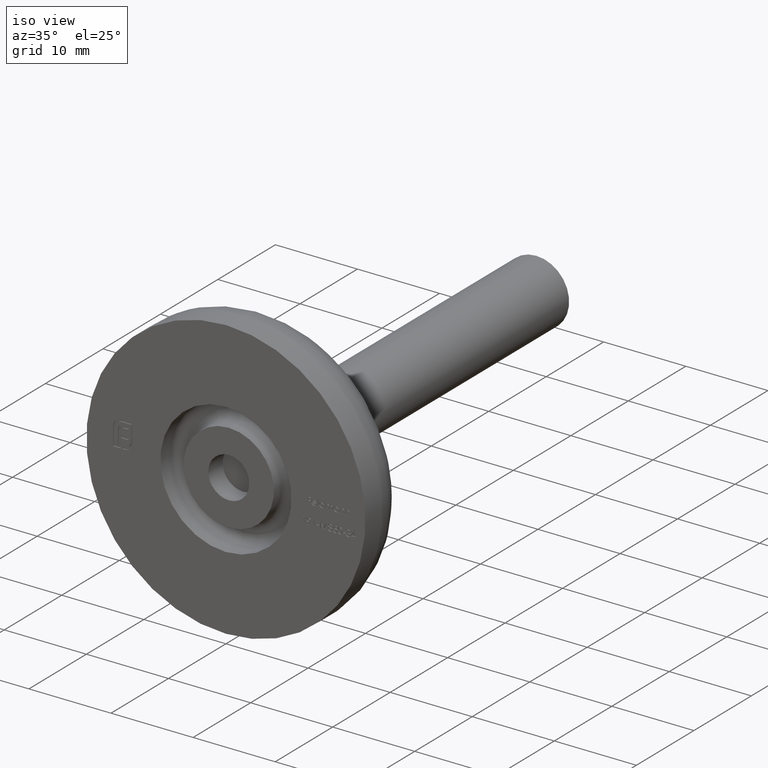
[diagram: clean part render]
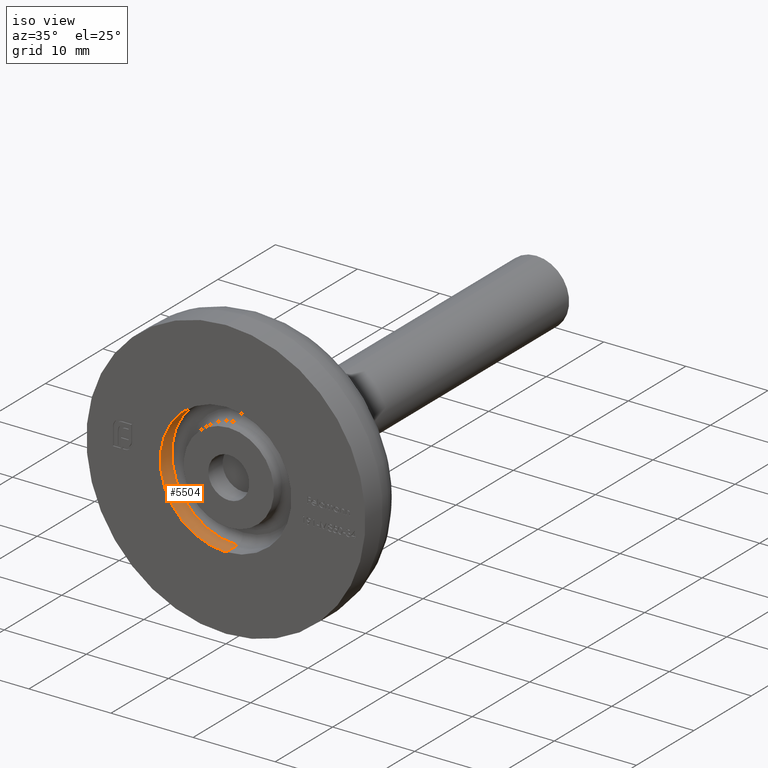
[diagram: same view with one face highlighted and labeled with its STEP entity id]
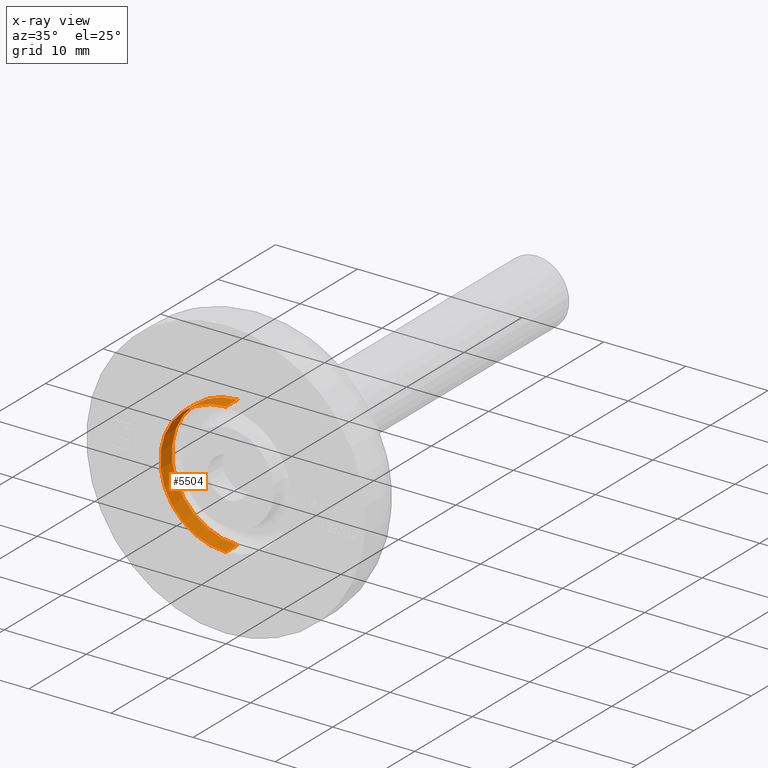
[diagram: x-ray of the same camera — body ghosted, the highlighted face saturated]
A machine part, iso view. The second image highlights one B-rep face of the part: STEP entity #5504.
The next image is the same camera in x-ray: the body ghosted, the highlighted face saturated — about 0% of this face is hidden behind the body in this view.
In plain terms, the highlighted cylindrical surface (partial cylindrical patch) has radius 8 mm, axis along (-0, -1, -0).
Its self-contained STEP definition (entity closure, byte-faithful):
#89 = CARTESIAN_POINT ( 'NONE',  ( 0.000000000000000000, 0.000000000000000000, 0.000000000000000000 ) ) ;
#213 = EDGE_CURVE ( 'NONE', #4932, #7429, #10123, .T. ) ;
#985 = ORIENTED_EDGE ( 'NONE', *, *, #15401, .T. ) ;
#1378 = CARTESIAN_POINT ( 'NONE',  ( 9.797174393178827630E-16, 0.000000000000000000, 8.000000000000001776 ) ) ;
#1841 = FACE_OUTER_BOUND ( 'NONE', #7045, .T. ) ;
#2003 = DIRECTION ( 'NONE',  ( 0.000000000000000000, 0.000000000000000000, -1.000000000000000000 ) ) ;
#2178 = ORIENTED_EDGE ( 'NONE', *, *, #2791, .T. ) ;
#2791 = EDGE_CURVE ( 'NONE', #5169, #7429, #5004, .T. ) ;
#3764 = CIRCLE ( 'NONE', #15601, 8.000000000000001776 ) ;
#4438 = VECTOR ( 'NONE', #11239, 1000.000000000000000 ) ;
#4695 = EDGE_CURVE ( 'NONE', #4932, #6853, #3764, .T. ) ;
#4836 = CARTESIAN_POINT ( 'NONE',  ( 0.000000000000000000, 2.000000000000000000, 0.000000000000000000 ) ) ;
#4932 = VERTEX_POINT ( 'NONE', #4995 ) ;
#4995 = CARTESIAN_POINT ( 'NONE',  ( 0.000000000000000000, 2.000000000000000000, -8.000000000000001776 ) ) ;
#5004 = CIRCLE ( 'NONE', #9227, 8.000000000000001776 ) ;
#5169 = VERTEX_POINT ( 'NONE', #1378 ) ;
#5504 = ADVANCED_FACE ( 'NONE', ( #1841 ), #7912, .F. ) ;
#5522 = DIRECTION ( 'NONE',  ( -0.000000000000000000, -1.000000000000000000, -0.000000000000000000 ) ) ;
#6442 = LINE ( 'NONE', #11126, #6818 ) ;
#6818 = VECTOR ( 'NONE', #8765, 1000.000000000000000 ) ;
#6853 = VERTEX_POINT ( 'NONE', #10491 ) ;
#7045 = EDGE_LOOP ( 'NONE', ( #14962, #985, #2178, #9085 ) ) ;
#7429 = VERTEX_POINT ( 'NONE', #7990 ) ;
#7912 = CYLINDRICAL_SURFACE ( 'NONE', #11457, 8.000000000000001776 ) ;
#7990 = CARTESIAN_POINT ( 'NONE',  ( 0.000000000000000000, 0.000000000000000000, -8.000000000000001776 ) ) ;
#8347 = DIRECTION ( 'NONE',  ( 0.000000000000000000, 0.000000000000000000, -1.000000000000000000 ) ) ;
#8557 = DIRECTION ( 'NONE',  ( 0.000000000000000000, -1.000000000000000000, 0.000000000000000000 ) ) ;
#8765 = DIRECTION ( 'NONE',  ( -0.000000000000000000, -1.000000000000000000, -0.000000000000000000 ) ) ;
#9085 = ORIENTED_EDGE ( 'NONE', *, *, #213, .F. ) ;
#9227 = AXIS2_PLACEMENT_3D ( 'NONE', #89, #8557, #8347 ) ;
#10123 = LINE ( 'NONE', #14742, #4438 ) ;
#10422 = CARTESIAN_POINT ( 'NONE',  ( 0.000000000000000000, 3.000000000000000000, 0.000000000000000000 ) ) ;
#10491 = CARTESIAN_POINT ( 'NONE',  ( 9.797174393178827630E-16, 2.000000000000000000, 8.000000000000001776 ) ) ;
#11126 = CARTESIAN_POINT ( 'NONE',  ( 9.797174393178827630E-16, 3.000000000000000000, 8.000000000000001776 ) ) ;
#11239 = DIRECTION ( 'NONE',  ( -0.000000000000000000, -1.000000000000000000, -0.000000000000000000 ) ) ;
#11457 = AXIS2_PLACEMENT_3D ( 'NONE', #10422, #5522, #2003 ) ;
#13307 = DIRECTION ( 'NONE',  ( -0.000000000000000000, 1.000000000000000000, -0.000000000000000000 ) ) ;
#14742 = CARTESIAN_POINT ( 'NONE',  ( 0.000000000000000000, 3.000000000000000000, -8.000000000000001776 ) ) ;
#14962 = ORIENTED_EDGE ( 'NONE', *, *, #4695, .T. ) ;
#15401 = EDGE_CURVE ( 'NONE', #6853, #5169, #6442, .T. ) ;
#15597 = DIRECTION ( 'NONE',  ( 0.000000000000000000, 0.000000000000000000, -1.000000000000000000 ) ) ;
#15601 = AXIS2_PLACEMENT_3D ( 'NONE', #4836, #13307, #15597 ) ;